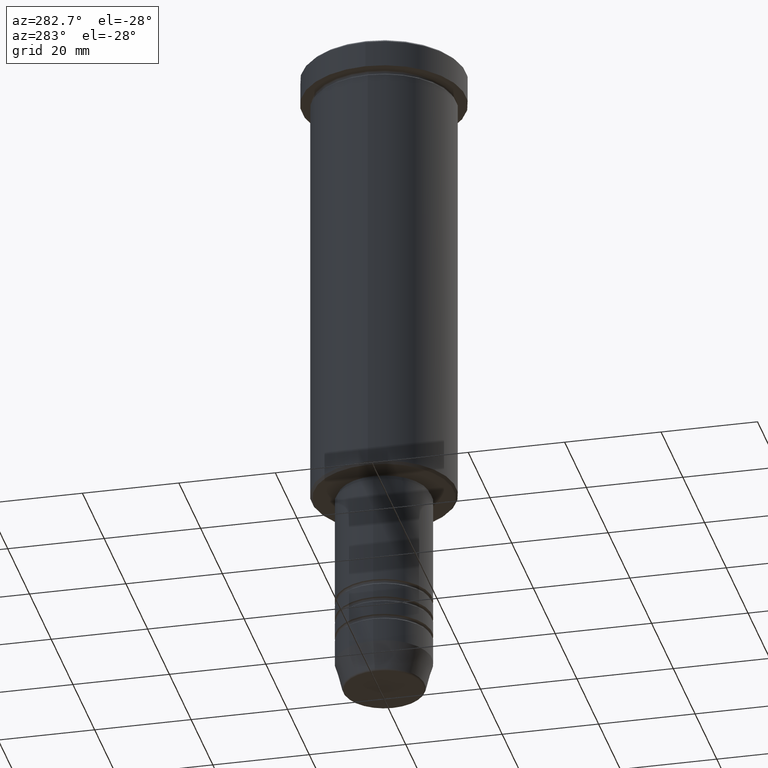
[diagram: clean part render]
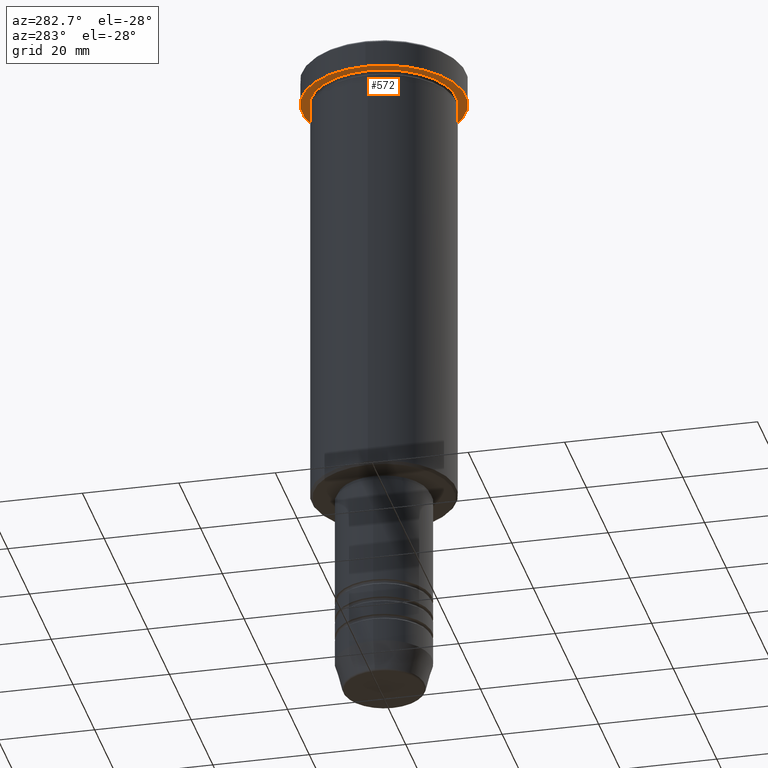
[diagram: same view with one face highlighted and labeled with its STEP entity id]
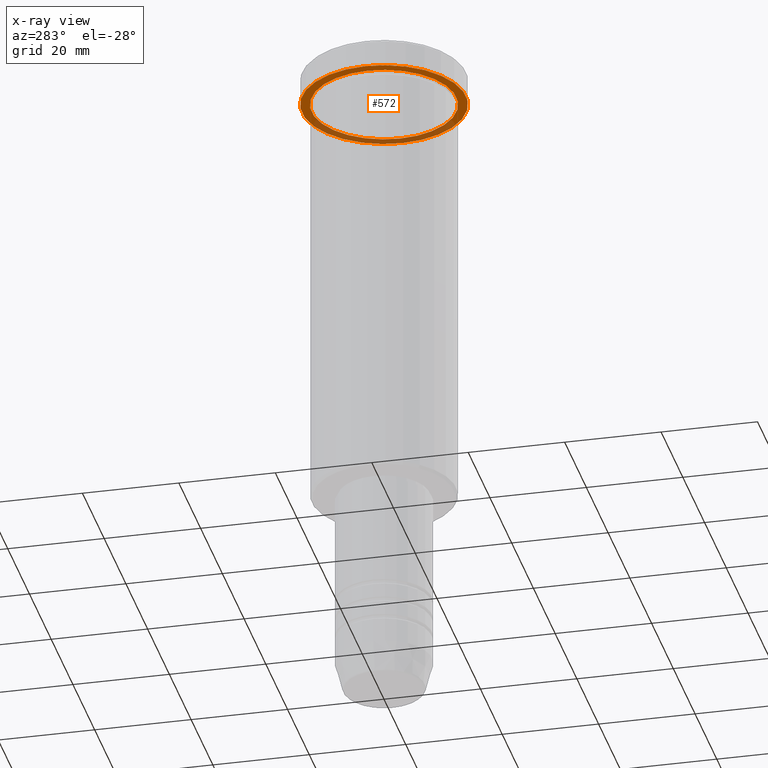
[diagram: x-ray of the same camera — body ghosted, the highlighted face saturated]
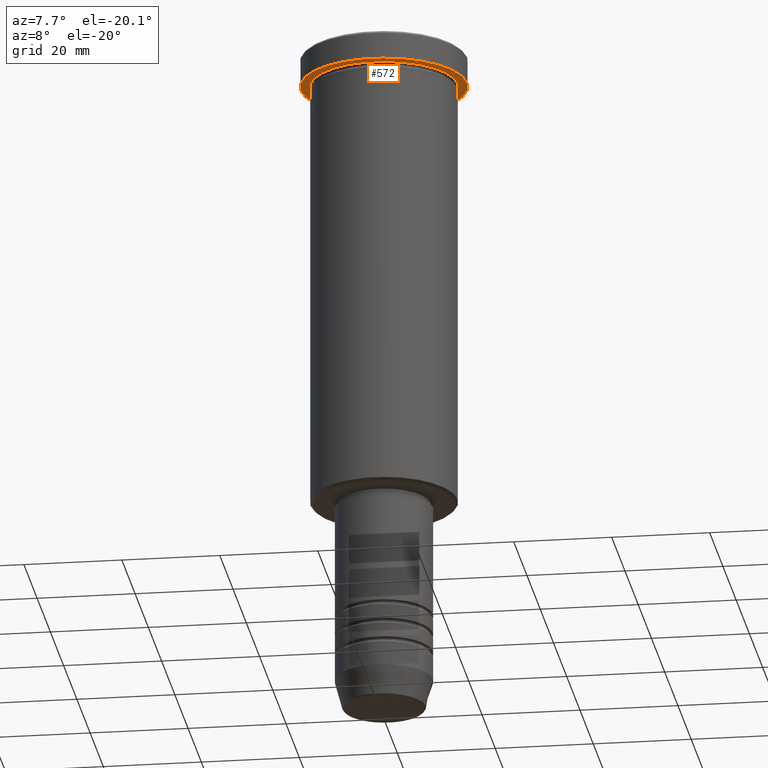
[diagram: same view with one face highlighted and labeled with its STEP entity id]
A machine part, auxiliary view. The second image highlights one B-rep face of the part: STEP entity #572.
The next image is the same camera in x-ray: the body ghosted, the highlighted face saturated — about 34% of this face is hidden behind the body in this view.
A second angle (auxiliary view) of the same face is appended — the face is thin or edge-on in the first view.
In plain terms, the highlighted planar face has unit normal (0, 0, -1).
Its self-contained STEP definition (entity closure, byte-faithful):
#39 = PLANE ( 'NONE',  #353 ) ;
#88 = AXIS2_PLACEMENT_3D ( 'NONE', #960, #767, #493 ) ;
#141 = EDGE_LOOP ( 'NONE', ( #1174, #719 ) ) ;
#163 = CARTESIAN_POINT ( 'NONE',  ( 17.00000000000000000, 0.000000000000000000, -5.999999999999994671 ) ) ;
#180 = DIRECTION ( 'NONE',  ( 1.000000000000000000, 0.000000000000000000, 0.000000000000000000 ) ) ;
#190 = CIRCLE ( 'NONE', #88, 15.00000000000000000 ) ;
#205 = AXIS2_PLACEMENT_3D ( 'NONE', #1138, #670, #868 ) ;
#250 = CARTESIAN_POINT ( 'NONE',  ( -15.00000000000000000, 0.000000000000000000, -5.999999999999994671 ) ) ;
#299 = AXIS2_PLACEMENT_3D ( 'NONE', #724, #1010, #380 ) ;
#313 = VERTEX_POINT ( 'NONE', #510 ) ;
#347 = EDGE_CURVE ( 'NONE', #313, #374, #622, .T. ) ;
#353 = AXIS2_PLACEMENT_3D ( 'NONE', #507, #1140, #874 ) ;
#374 = VERTEX_POINT ( 'NONE', #163 ) ;
#379 = VERTEX_POINT ( 'NONE', #250 ) ;
#380 = DIRECTION ( 'NONE',  ( -1.000000000000000000, 0.000000000000000000, 0.000000000000000000 ) ) ;
#458 = DIRECTION ( 'NONE',  ( -0.000000000000000000, -0.000000000000000000, 1.000000000000000000 ) ) ;
#484 = CIRCLE ( 'NONE', #205, 17.00000000000000000 ) ;
#493 = DIRECTION ( 'NONE',  ( -1.000000000000000000, 0.000000000000000000, 0.000000000000000000 ) ) ;
#507 = CARTESIAN_POINT ( 'NONE',  ( 0.000000000000000000, 17.00000000000000000, -5.999999999999994671 ) ) ;
#510 = CARTESIAN_POINT ( 'NONE',  ( -17.00000000000000000, 2.081899558550500280E-15, -5.999999999999994671 ) ) ;
#530 = EDGE_CURVE ( 'NONE', #374, #313, #484, .T. ) ;
#545 = EDGE_CURVE ( 'NONE', #735, #379, #190, .T. ) ;
#572 = ADVANCED_FACE ( 'NONE', ( #1148, #1131 ), #39, .T. ) ;
#601 = EDGE_LOOP ( 'NONE', ( #1033, #1181 ) ) ;
#622 = CIRCLE ( 'NONE', #935, 17.00000000000000000 ) ;
#670 = DIRECTION ( 'NONE',  ( -0.000000000000000000, -0.000000000000000000, 1.000000000000000000 ) ) ;
#719 = ORIENTED_EDGE ( 'NONE', *, *, #545, .T. ) ;
#724 = CARTESIAN_POINT ( 'NONE',  ( 0.000000000000000000, 0.000000000000000000, -5.999999999999994671 ) ) ;
#735 = VERTEX_POINT ( 'NONE', #784 ) ;
#767 = DIRECTION ( 'NONE',  ( -0.000000000000000000, -0.000000000000000000, 1.000000000000000000 ) ) ;
#784 = CARTESIAN_POINT ( 'NONE',  ( 15.00000000000000000, 1.836970198721029589E-15, -5.999999999999994671 ) ) ;
#811 = CIRCLE ( 'NONE', #299, 15.00000000000000000 ) ;
#827 = CARTESIAN_POINT ( 'NONE',  ( 0.000000000000000000, 0.000000000000000000, -5.999999999999994671 ) ) ;
#868 = DIRECTION ( 'NONE',  ( 1.000000000000000000, 0.000000000000000000, 0.000000000000000000 ) ) ;
#874 = DIRECTION ( 'NONE',  ( -1.000000000000000000, 0.000000000000000000, -0.000000000000000000 ) ) ;
#931 = EDGE_CURVE ( 'NONE', #379, #735, #811, .T. ) ;
#935 = AXIS2_PLACEMENT_3D ( 'NONE', #827, #458, #180 ) ;
#960 = CARTESIAN_POINT ( 'NONE',  ( 0.000000000000000000, 0.000000000000000000, -5.999999999999994671 ) ) ;
#1010 = DIRECTION ( 'NONE',  ( -0.000000000000000000, -0.000000000000000000, 1.000000000000000000 ) ) ;
#1033 = ORIENTED_EDGE ( 'NONE', *, *, #530, .F. ) ;
#1131 = FACE_OUTER_BOUND ( 'NONE', #601, .T. ) ;
#1138 = CARTESIAN_POINT ( 'NONE',  ( 0.000000000000000000, 0.000000000000000000, -5.999999999999994671 ) ) ;
#1140 = DIRECTION ( 'NONE',  ( 0.000000000000000000, 0.000000000000000000, -1.000000000000000000 ) ) ;
#1148 = FACE_BOUND ( 'NONE', #141, .T. ) ;
#1174 = ORIENTED_EDGE ( 'NONE', *, *, #931, .T. ) ;
#1181 = ORIENTED_EDGE ( 'NONE', *, *, #347, .F. ) ;